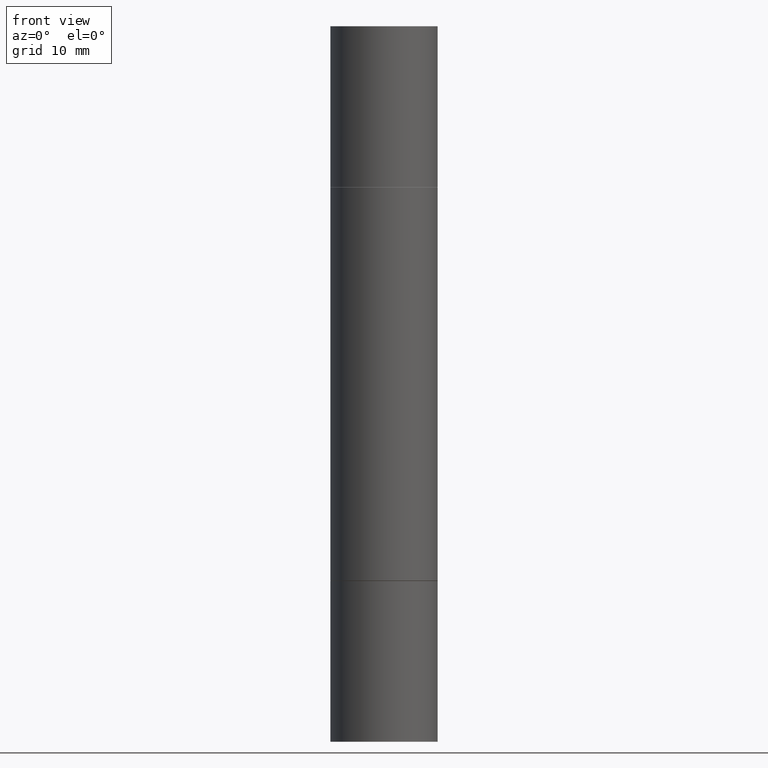
[diagram: clean part render]
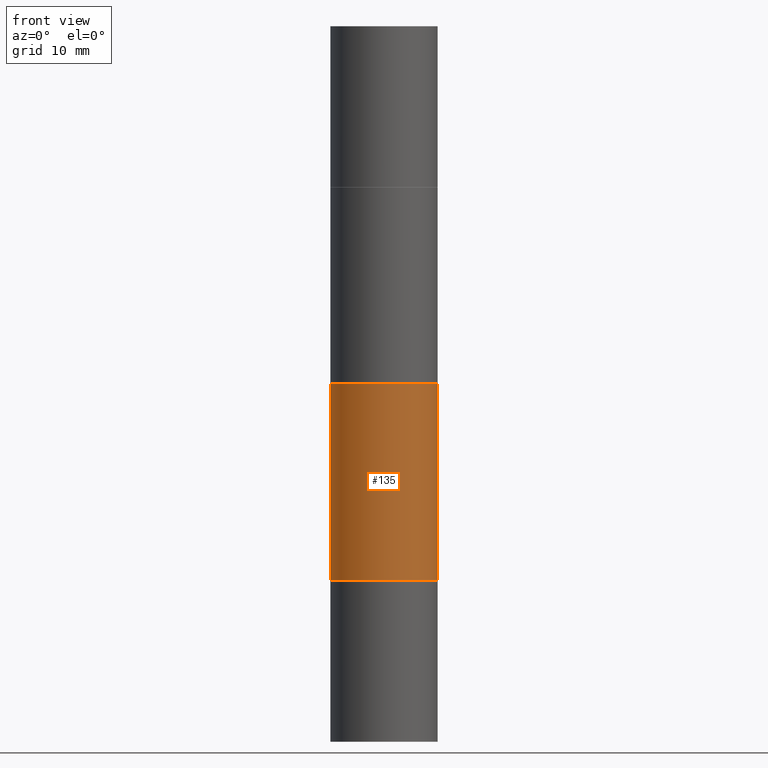
[diagram: same view with one face highlighted and labeled with its STEP entity id]
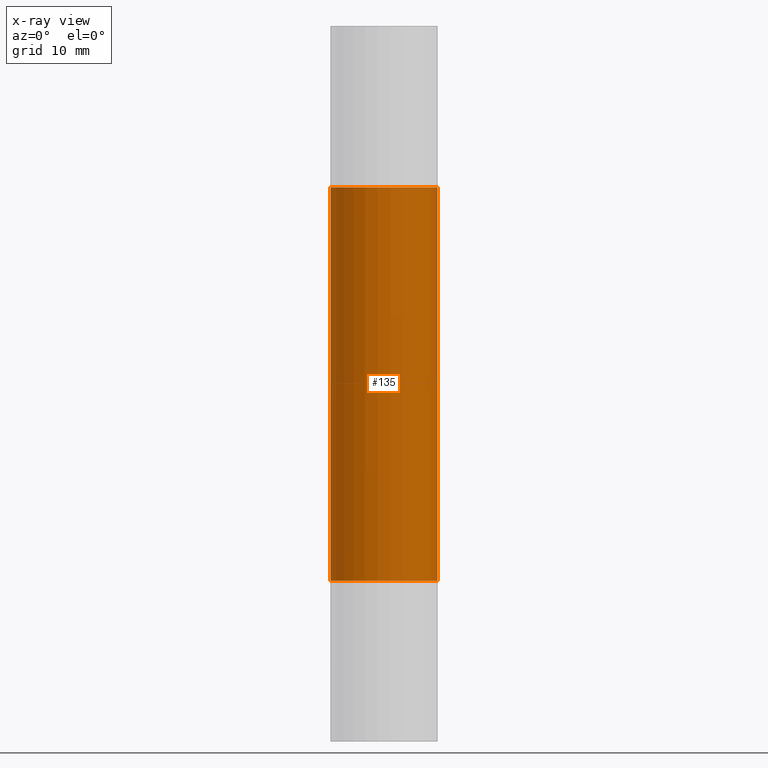
[diagram: x-ray of the same camera — body ghosted, the highlighted face saturated]
A machine part, front view. The second image highlights one B-rep face of the part: STEP entity #135.
The next image is the same camera in x-ray: the body ghosted, the highlighted face saturated — about 0% of this face is hidden behind the body in this view.
In plain terms, the highlighted cylindrical surface (partial cylindrical patch) has radius 4.7625 mm, axis along (-0, -0, -1).
Its self-contained STEP definition (entity closure, byte-faithful):
#11 = DIRECTION ( 'NONE',  ( 1.000000000000000000, -6.982962677686270655E-15, 0.000000000000000000 ) ) ;
#35 = AXIS2_PLACEMENT_3D ( 'NONE', #341, #607, #246 ) ;
#41 = LINE ( 'NONE', #367, #250 ) ;
#62 = CARTESIAN_POINT ( 'NONE',  ( 4.736873077580609355E-29, -1.964735960817877172E-15, -0.5629999999999997229 ) ) ;
#107 = DIRECTION ( 'NONE',  ( -2.445468806185136877E-29, -3.492890411551753071E-15, -1.000000000000000000 ) ) ;
#111 = CYLINDRICAL_SURFACE ( 'NONE', #574, 0.1874999999999999167 ) ;
#113 = VERTEX_POINT ( 'NONE', #303 ) ;
#114 = CIRCLE ( 'NONE', #288, 0.1875000000000000278 ) ;
#132 = ORIENTED_EDGE ( 'NONE', *, *, #514, .F. ) ;
#134 = VERTEX_POINT ( 'NONE', #421 ) ;
#135 = ADVANCED_FACE ( 'NONE', ( #582 ), #111, .T. ) ;
#166 = ORIENTED_EDGE ( 'NONE', *, *, #345, .T. ) ;
#169 = EDGE_CURVE ( 'NONE', #629, #134, #114, .T. ) ;
#246 = DIRECTION ( 'NONE',  ( 1.000000000000000000, -6.982962677686266711E-15, 0.000000000000000000 ) ) ;
#250 = VECTOR ( 'NONE', #107, 39.37007874015748143 ) ;
#255 = CARTESIAN_POINT ( 'NONE',  ( -0.1875000000000000278, -6.783925862357143136E-16, -0.5629999999999997229 ) ) ;
#263 = CARTESIAN_POINT ( 'NONE',  ( 0.1875000000000000278, -8.072304855405348046E-15, -1.936999999999999833 ) ) ;
#288 = AXIS2_PLACEMENT_3D ( 'NONE', #62, #527, #646 ) ;
#298 = LINE ( 'NONE', #455, #344 ) ;
#303 = CARTESIAN_POINT ( 'NONE',  ( -0.1874999999999999722, -3.078008298971767937E-15, -1.936999999999999833 ) ) ;
#320 = CARTESIAN_POINT ( 'NONE',  ( 0.000000000000000000, -8.730464687993621641E-15, -2.499999999999999556 ) ) ;
#341 = CARTESIAN_POINT ( 'NONE',  ( 4.736873077580609355E-29, -6.762999353339172249E-15, -1.936999999999999833 ) ) ;
#344 = VECTOR ( 'NONE', #505, 39.37007874015748143 ) ;
#345 = EDGE_CURVE ( 'NONE', #113, #520, #648, .T. ) ;
#352 = EDGE_LOOP ( 'NONE', ( #508, #523, #166, #132 ) ) ;
#367 = CARTESIAN_POINT ( 'NONE',  ( 0.1874999999999999167, -1.003977019005979665E-14, -2.499999999999999556 ) ) ;
#421 = CARTESIAN_POINT ( 'NONE',  ( 0.1875000000000000278, -3.274041462884052574E-15, -0.5629999999999997229 ) ) ;
#455 = CARTESIAN_POINT ( 'NONE',  ( -0.1874999999999999167, -7.444121313411459473E-15, -2.499999999999999556 ) ) ;
#479 = EDGE_CURVE ( 'NONE', #629, #113, #298, .T. ) ;
#505 = DIRECTION ( 'NONE',  ( -2.445468806185136877E-29, -3.492890411551753071E-15, -1.000000000000000000 ) ) ;
#508 = ORIENTED_EDGE ( 'NONE', *, *, #169, .F. ) ;
#514 = EDGE_CURVE ( 'NONE', #134, #520, #41, .T. ) ;
#520 = VERTEX_POINT ( 'NONE', #263 ) ;
#523 = ORIENTED_EDGE ( 'NONE', *, *, #479, .T. ) ;
#527 = DIRECTION ( 'NONE',  ( 2.445468806185136597E-29, 3.492890411551752677E-15, 1.000000000000000000 ) ) ;
#528 = DIRECTION ( 'NONE',  ( -2.445468806185136597E-29, -3.492890411551752677E-15, -1.000000000000000000 ) ) ;
#574 = AXIS2_PLACEMENT_3D ( 'NONE', #320, #528, #11 ) ;
#582 = FACE_OUTER_BOUND ( 'NONE', #352, .T. ) ;
#607 = DIRECTION ( 'NONE',  ( -2.445468806185136597E-29, 3.491481338843145583E-15, 1.000000000000000000 ) ) ;
#629 = VERTEX_POINT ( 'NONE', #255 ) ;
#646 = DIRECTION ( 'NONE',  ( 1.000000000000000000, -6.982962677686266711E-15, 0.000000000000000000 ) ) ;
#648 = CIRCLE ( 'NONE', #35, 0.1875000000000000278 ) ;